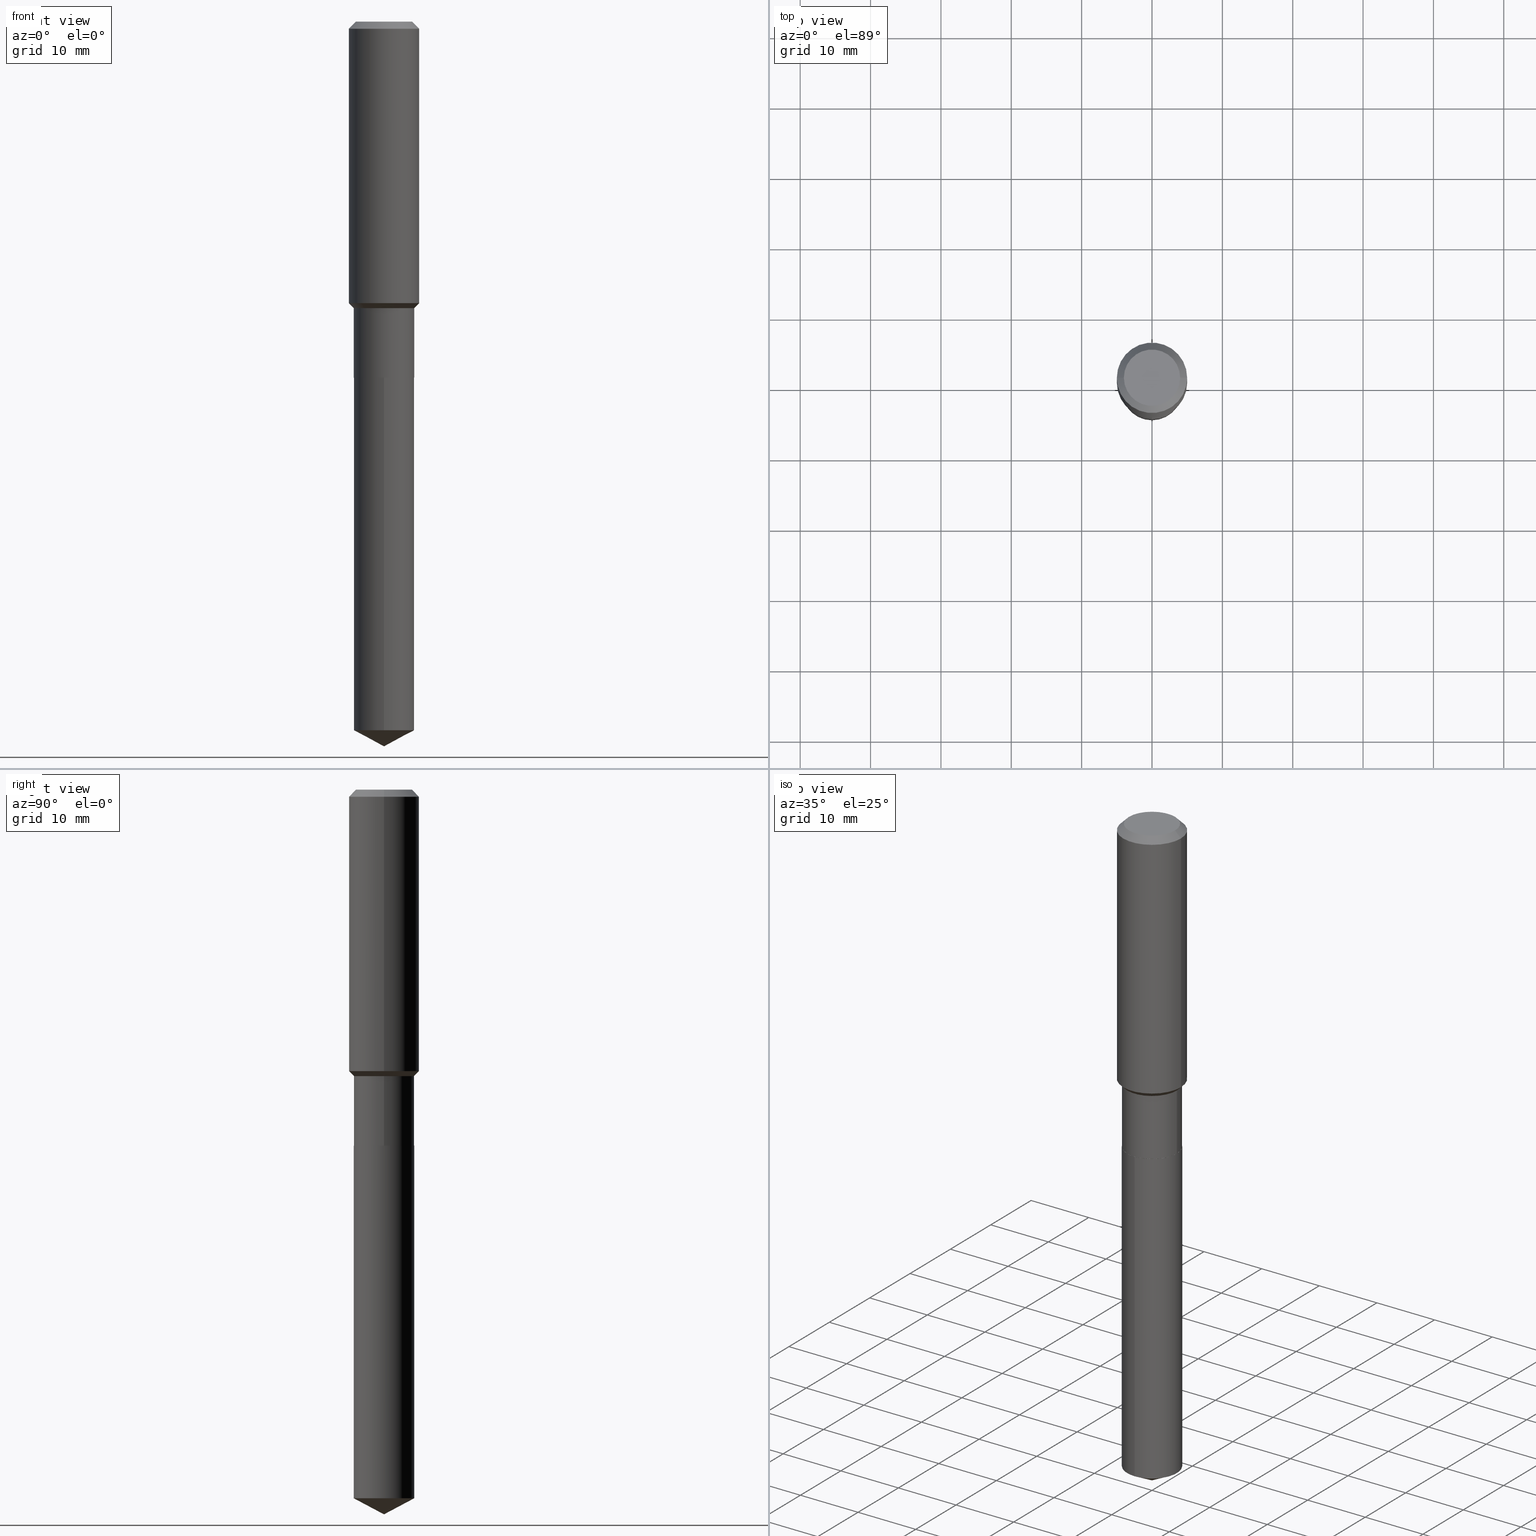
[diagram: canonical four-view strip — front | top / right | iso, engineering-drawing reading convention]
A machine part, canonical four-view strip (front | top / right | iso — engineering-drawing reading convention). The complete STEP part file that produces these views, byte-faithful:
ISO-10303-21;
HEADER;
FILE_DESCRIPTION (( 'STEP AP203' ),
    '1' );
FILE_NAME ('65216.STEP',
    '2024-04-24T21:30:14',
    ( '' ),
    ( '' ),
    'SwSTEP 2.0',
    'SolidWorks 2023',
    '' );
FILE_SCHEMA (( 'CONFIG_CONTROL_DESIGN' ));
ENDSEC;

DATA;
#1 = ADVANCED_FACE ( 'NONE', ( #369 ), #483, .T. ) ;
#2 = FACE_OUTER_BOUND ( 'NONE', #67, .T. ) ;
#3 = DIRECTION ( 'NONE',  ( -2.445468806185136597E-29, 3.491481338843145583E-15, 1.000000000000000000 ) ) ;
#4 = AXIS2_PLACEMENT_3D ( 'NONE', #79, #231, #416 ) ;
#5 = APPROVAL ( #29, 'UNSPECIFIED' ) ;
#6 = AXIS2_PLACEMENT_3D ( 'NONE', #457, #85, #381 ) ;
#7 = DIRECTION ( 'NONE',  ( -2.445468806185136597E-29, 3.491481338843145583E-15, 1.000000000000000000 ) ) ;
#8 = CARTESIAN_POINT ( 'NONE',  ( 4.871618408801410518E-29, -6.955379975109430620E-15, -1.992099999999999982 ) ) ;
#9 = DIRECTION ( 'NONE',  ( -6.982962677686265922E-15, -1.000000000000000000, 3.227227399485248397E-15 ) ) ;
#10 = DIRECTION ( 'NONE',  ( 0.000000000000000000, 0.000000000000000000, 1.000000000000000000 ) ) ;
#11 = LINE ( 'NONE', #204, #190 ) ;
#12 = EDGE_LOOP ( 'NONE', ( #427, #86, #331, #165 ) ) ;
#13 = EDGE_CURVE ( 'NONE', #17, #63, #273, .T. ) ;
#14 = LINE ( 'NONE', #422, #159 ) ;
#15 = ORIENTED_EDGE ( 'NONE', *, *, #440, .F. ) ;
#16 = CALENDAR_DATE ( 2024, 24, 4 ) ;
#17 = VERTEX_POINT ( 'NONE', #373 ) ;
#18 = DIRECTION ( 'NONE',  ( -1.000000000000000000, 6.982962677686265922E-15, -4.876176775795935793E-29 ) ) ;
#19 = PERSON_AND_ORGANIZATION_ROLE ( 'creator' ) ;
#20 = EDGE_CURVE ( 'NONE', #311, #213, #65, .T. ) ;
#21 = EDGE_LOOP ( 'NONE', ( #398, #323, #388, #406 ) ) ;
#22 = AXIS2_PLACEMENT_3D ( 'NONE', #400, #137, #109 ) ;
#23 = COORDINATED_UNIVERSAL_TIME_OFFSET ( 5, 0, .BEHIND. ) ;
#24 = LOCAL_TIME ( 17, 30, 14.00000000000000000, #146 ) ;
#25 = ORIENTED_EDGE ( 'NONE', *, *, #248, .T. ) ;
#26 = PERSON_AND_ORGANIZATION ( #245, #34 ) ;
#27 = CARTESIAN_POINT ( 'NONE',  ( -0.1968500000000001082, 1.398703375343757985E-15, -9.682923725166787881E-30 ) ) ;
#28 = ORIENTED_EDGE ( 'NONE', *, *, #485, .T. ) ;
#29 = APPROVAL_STATUS ( 'not_yet_approved' ) ;
#30 = EDGE_CURVE ( 'NONE', #113, #392, #375, .T. ) ;
#31 = DIRECTION ( 'NONE',  ( -2.445468806185136877E-29, 3.491481338843145188E-15, 1.000000000000000000 ) ) ;
#32 = ORIENTED_EDGE ( 'NONE', *, *, #345, .T. ) ;
#33 = VECTOR ( 'NONE', #299, 39.37007874015748143 ) ;
#34 = ORGANIZATION ( 'UNSPECIFIED', 'UNSPECIFIED', '' ) ;
#35 = DIRECTION ( 'NONE',  ( 1.000000000000000000, -6.982962677686265922E-15, 0.000000000000000000 ) ) ;
#36 = EDGE_CURVE ( 'NONE', #321, #170, #258, .T. ) ;
#37 = CARTESIAN_POINT ( 'NONE',  ( -0.1692999999999999783, -4.392848290122059552E-15, -1.602700000000000014 ) ) ;
#38 = PRODUCT_DEFINITION_FORMATION_WITH_SPECIFIED_SOURCE ( 'ANY', '', #286, .NOT_KNOWN. ) ;
#39 = FACE_OUTER_BOUND ( 'NONE', #466, .T. ) ;
#40 = CARTESIAN_POINT ( 'NONE',  ( 9.916727560451904091E-29, -1.415815404955481658E-14, -4.055100000000000371 ) ) ;
#41 = DESIGN_CONTEXT ( 'detailed design', #259, 'design' ) ;
#42 = CARTESIAN_POINT ( 'NONE',  ( 3.919352855672918562E-29, -5.595797141763909209E-15, -1.602700000000000014 ) ) ;
#43 = AXIS2_PLACEMENT_3D ( 'NONE', #252, #295, #218 ) ;
#44 = CIRCLE ( 'NONE', #393, 0.1968500000000002192 ) ;
#45 = PLANE ( 'NONE',  #223 ) ;
#46 = CARTESIAN_POINT ( 'NONE',  ( -8.636265493660212245E-28, 1.233001915131451199E-13, 35.31497874015747840 ) ) ;
#47 = EDGE_LOOP ( 'NONE', ( #360, #320, #462, #472 ) ) ;
#48 =( NAMED_UNIT ( * ) PLANE_ANGLE_UNIT ( ) SI_UNIT ( $, .RADIAN. ) );
#49 = DIRECTION ( 'NONE',  ( 1.000000000000000000, -6.982962677686265922E-15, 4.876176775795935232E-29 ) ) ;
#50 = ADVANCED_FACE ( 'NONE', ( #338 ), #148, .T. ) ;
#51 = ORIENTED_EDGE ( 'NONE', *, *, #336, .F. ) ;
#52 = DIRECTION ( 'NONE',  ( -2.445468806185136597E-29, 3.491481338843145583E-15, 1.000000000000000000 ) ) ;
#53 = AXIS2_PLACEMENT_3D ( 'NONE', #250, #353, #315 ) ;
#54 = LINE ( 'NONE', #322, #175 ) ;
#55 = APPROVAL_PERSON_ORGANIZATION ( #335, #185, #399 ) ;
#56 = ORIENTED_EDGE ( 'NONE', *, *, #177, .F. ) ;
#57 = SHAPE_DEFINITION_REPRESENTATION ( #72, #193 ) ;
#58 = ORIENTED_EDGE ( 'NONE', *, *, #152, .F. ) ;
#59 = DATE_AND_TIME ( #474, #307 ) ;
#60 = PRODUCT_RELATED_PRODUCT_CATEGORY ( 'detail', '', ( #286 ) ) ;
#61 = DIRECTION ( 'NONE',  ( -2.438088387897960049E-29, 3.491481338843145188E-15, 1.000000000000000000 ) ) ;
#62 =( LENGTH_UNIT ( ) NAMED_UNIT ( * ) SI_UNIT ( $, .METRE. ) );
#63 = VERTEX_POINT ( 'NONE', #268 ) ;
#64 = CARTESIAN_POINT ( 'NONE',  ( 4.870395674398318837E-29, -6.953634234440009116E-15, -1.991600000000000037 ) ) ;
#65 = CIRCLE ( 'NONE', #355, 0.1693000000000000338 ) ;
#66 = CIRCLE ( 'NONE', #300, 0.1692999999999999783 ) ;
#67 = EDGE_LOOP ( 'NONE', ( #107, #25, #140, #441 ) ) ;
#68 = CARTESIAN_POINT ( 'NONE',  ( 0.1688000000000000334, -8.134104075102871639E-15, -1.992099999999999982 ) ) ;
#69 = ORIENTED_EDGE ( 'NONE', *, *, #248, .F. ) ;
#70 = FACE_OUTER_BOUND ( 'NONE', #21, .T. ) ;
#71 = PERSON_AND_ORGANIZATION ( #245, #34 ) ;
#72 = PRODUCT_DEFINITION_SHAPE ( 'NONE', 'NONE',  #419 ) ;
#73 = ADVANCED_FACE ( 'NONE', ( #2 ), #265, .T. ) ;
#74 = ORIENTED_EDGE ( 'NONE', *, *, #345, .F. ) ;
#75 = CARTESIAN_POINT ( 'NONE',  ( -0.1968500000000000250, 1.237136582792286225E-15, -0.03937000000000029365 ) ) ;
#76 = CC_DESIGN_APPROVAL ( #185, ( #419 ) ) ;
#77 = CARTESIAN_POINT ( 'NONE',  ( -9.427742298522567634E-47, 1.346031739168368355E-32, 3.855188123715870730E-18 ) ) ;
#78 = EDGE_CURVE ( 'NONE', #63, #100, #305, .T. ) ;
#79 = CARTESIAN_POINT ( 'NONE',  ( 3.919352855672918562E-29, -5.595797141763909209E-15, -1.602700000000000014 ) ) ;
#80 = CARTESIAN_POINT ( 'NONE',  ( -0.1688000000000000334, -5.753334609972270660E-15, -1.992099999999999982 ) ) ;
#81 = AXIS2_PLACEMENT_3D ( 'NONE', #93, #396, #241 ) ;
#82 = DIRECTION ( 'NONE',  ( -6.982962677686265922E-15, -1.000000000000000000, 3.541896320645556530E-15 ) ) ;
#83 = CC_DESIGN_DATE_AND_TIME_ASSIGNMENT ( #372, #358, ( #244 ) ) ;
#84 = APPLICATION_CONTEXT ( 'configuration controlled 3d designs of mechanical parts and assemblies' ) ;
#85 = DIRECTION ( 'NONE',  ( -2.445468806185136597E-29, 3.491481338843145583E-15, 1.000000000000000000 ) ) ;
#86 = ORIENTED_EDGE ( 'NONE', *, *, #220, .T. ) ;
#87 = AXIS2_PLACEMENT_3D ( 'NONE', #168, #319, #271 ) ;
#88 = DIRECTION ( 'NONE',  ( -6.982962677686265922E-15, -1.000000000000000000, 3.227227399485248397E-15 ) ) ;
#89 = ADVANCED_FACE ( 'NONE', ( #188 ), #174, .T. ) ;
#90 = CARTESIAN_POINT ( 'NONE',  ( 0.000000000000000000, 0.000000000000000000, 0.000000000000000000 ) ) ;
#91 = ORIENTED_EDGE ( 'NONE', *, *, #440, .T. ) ;
#92 = DIRECTION ( 'NONE',  ( -2.445468806185136597E-29, 3.491481338843145583E-15, 1.000000000000000000 ) ) ;
#93 = CARTESIAN_POINT ( 'NONE',  ( 9.627810689950954155E-31, -1.374596203102556547E-16, -0.03937000000000029365 ) ) ;
#94 = EDGE_LOOP ( 'NONE', ( #317, #219, #15, #482 ) ) ;
#95 = DIRECTION ( 'NONE',  ( -6.982962677686265922E-15, -1.000000000000000000, 3.227227399485248397E-15 ) ) ;
#96 = AXIS2_PLACEMENT_3D ( 'NONE', #308, #156, #344 ) ;
#97 = CARTESIAN_POINT ( 'NONE',  ( 3.851980190062517980E-29, -5.499606830878780813E-15, -1.575150000000000050 ) ) ;
#98 = LOCAL_TIME ( 17, 30, 14.00000000000000000, #23 ) ;
#99 = APPROVAL ( #257, 'UNSPECIFIED' ) ;
#100 = VERTEX_POINT ( 'NONE', #153 ) ;
#101 = PERSON_AND_ORGANIZATION_ROLE ( 'design_owner' ) ;
#102 = ORIENTED_EDGE ( 'NONE', *, *, #352, .F. ) ;
#103 = ORIENTED_EDGE ( 'NONE', *, *, #220, .F. ) ;
#104 = FACE_OUTER_BOUND ( 'NONE', #249, .T. ) ;
#105 = EDGE_LOOP ( 'NONE', ( #205, #356 ) ) ;
#106 = VECTOR ( 'NONE', #282, 39.37007874015748143 ) ;
#107 = ORIENTED_EDGE ( 'NONE', *, *, #78, .F. ) ;
#108 = DATE_TIME_ROLE ( 'creation_date' ) ;
#109 = DIRECTION ( 'NONE',  ( 1.000000000000000000, -6.982962677686265922E-15, 0.000000000000000000 ) ) ;
#110 = ADVANCED_FACE ( 'NONE', ( #417 ), #298, .T. ) ;
#111 = ORIENTED_EDGE ( 'NONE', *, *, #152, .T. ) ;
#112 = CALENDAR_DATE ( 2024, 24, 4 ) ;
#113 = VERTEX_POINT ( 'NONE', #155 ) ;
#114 = EDGE_CURVE ( 'NONE', #279, #63, #380, .T. ) ;
#115 = CIRCLE ( 'NONE', #22, 0.1968500000000000250 ) ;
#116 = DIRECTION ( 'NONE',  ( 2.445468806185136597E-29, -3.491481338843145583E-15, -1.000000000000000000 ) ) ;
#117 = CARTESIAN_POINT ( 'NONE',  ( -8.636265493660212245E-28, 1.233001915131451199E-13, 35.31497874015747840 ) ) ;
#118 = EDGE_CURVE ( 'NONE', #141, #329, #413, .T. ) ;
#119 = DIRECTION ( 'NONE',  ( -2.445468806185136597E-29, 3.491481338843145583E-15, 1.000000000000000000 ) ) ;
#120 = VECTOR ( 'NONE', #201, 39.37007874015748143 ) ;
#121 = CARTESIAN_POINT ( 'NONE',  ( 0.000000000000000000, 0.000000000000000000, 0.000000000000000000 ) ) ;
#122 = CARTESIAN_POINT ( 'NONE',  ( 0.1968500000000000250, -1.512055823412797189E-15, -0.03937000000000029365 ) ) ;
#123 = FACE_OUTER_BOUND ( 'NONE', #94, .T. ) ;
#124 = EDGE_LOOP ( 'NONE', ( #437, #410, #69 ) ) ;
#125 = EDGE_CURVE ( 'NONE', #100, #200, #260, .T. ) ;
#126 = AXIS2_PLACEMENT_3D ( 'NONE', #407, #288, #18 ) ;
#127 = CC_DESIGN_APPROVAL ( #99, ( #38 ) ) ;
#128 = DIRECTION ( 'NONE',  ( -6.982962677686265922E-15, -1.000000000000000000, 3.541896320645556530E-15 ) ) ;
#129 = VERTEX_POINT ( 'NONE', #80 ) ;
#130 = CARTESIAN_POINT ( 'NONE',  ( 4.871618408801410518E-29, -6.955379975109430620E-15, -1.992099999999999982 ) ) ;
#131 = ORIENTED_EDGE ( 'NONE', *, *, #301, .F. ) ;
#132 = DIRECTION ( 'NONE',  ( -2.445494968417310331E-29, 3.491443873037610959E-15, 1.000000000000000000 ) ) ;
#133 = CARTESIAN_POINT ( 'NONE',  ( 0.1688000000000000334, -8.134104075102871639E-15, -1.992099999999999982 ) ) ;
#134 = EDGE_CURVE ( 'NONE', #279, #17, #227, .T. ) ;
#135 = ORIENTED_EDGE ( 'NONE', *, *, #304, .F. ) ;
#136 = APPROVAL_ROLE ( '' ) ;
#137 = DIRECTION ( 'NONE',  ( -2.445468806185136597E-29, 3.491481338843145583E-15, 1.000000000000000000 ) ) ;
#138 = CONICAL_SURFACE ( 'NONE', #154, 74.04434902938362484, 1.082104136236486935 ) ;
#139 = DIRECTION ( 'NONE',  ( 1.000000000000000000, -6.982962677686266711E-15, 4.876176775795935793E-29 ) ) ;
#140 = ORIENTED_EDGE ( 'NONE', *, *, #163, .T. ) ;
#141 = VERTEX_POINT ( 'NONE', #347 ) ;
#142 = ORIENTED_EDGE ( 'NONE', *, *, #177, .T. ) ;
#143 = PLANE ( 'NONE',  #126 ) ;
#144 = CARTESIAN_POINT ( 'NONE',  ( 3.919352855672918562E-29, -5.595797141763909209E-15, -1.602700000000000014 ) ) ;
#145 = ORIENTED_EDGE ( 'NONE', *, *, #404, .T. ) ;
#146 = COORDINATED_UNIVERSAL_TIME_OFFSET ( 5, 0, .BEHIND. ) ;
#147 = ADVANCED_FACE ( 'NONE', ( #39 ), #232, .T. ) ;
#148 = CONICAL_SURFACE ( 'NONE', #228, 0.1688000000000000334, 0.7853981633975507526 ) ;
#149 = DIRECTION ( 'NONE',  ( 1.000000000000000000, -6.982962677686265922E-15, 0.000000000000000000 ) ) ;
#150 = ORIENTED_EDGE ( 'NONE', *, *, #30, .F. ) ;
#151 = CYLINDRICAL_SURFACE ( 'NONE', #312, 0.1968500000000001082 ) ;
#152 = EDGE_CURVE ( 'NONE', #409, #113, #306, .T. ) ;
#153 = CARTESIAN_POINT ( 'NONE',  ( 1.202948851641946885E-15, 0.1692999999999930671, -1.992100000000000648 ) ) ;
#154 = AXIS2_PLACEMENT_3D ( 'NONE', #46, #351, #128 ) ;
#155 = CARTESIAN_POINT ( 'NONE',  ( -0.1574800000000000089, 1.168406772637159618E-15, 3.855188123707939751E-18 ) ) ;
#156 = DIRECTION ( 'NONE',  ( -2.445468806185136597E-29, 3.491481338843145583E-15, 1.000000000000000000 ) ) ;
#157 = CC_DESIGN_DATE_AND_TIME_ASSIGNMENT ( #59, #108, ( #419 ) ) ;
#158 = DIRECTION ( 'NONE',  ( -2.445494968417310331E-29, 3.491443873037610959E-15, 1.000000000000000000 ) ) ;
#159 = VECTOR ( 'NONE', #239, 39.37007874015748143 ) ;
#160 = CC_DESIGN_SECURITY_CLASSIFICATION ( #244, ( #38 ) ) ;
#161 = CARTESIAN_POINT ( 'NONE',  ( -1.182215581332236300E-15, -0.1693000000000070004, -1.992099999999999538 ) ) ;
#162 = DIRECTION ( 'NONE',  ( 1.000000000000000000, -6.982962677686266711E-15, 0.000000000000000000 ) ) ;
#163 = EDGE_CURVE ( 'NONE', #17, #200, #421, .T. ) ;
#164 = DIRECTION ( 'NONE',  ( 0.7071067811865450192, -7.319954787623246579E-15, -0.7071067811865500152 ) ) ;
#165 = ORIENTED_EDGE ( 'NONE', *, *, #36, .F. ) ;
#166 = DIRECTION ( 'NONE',  ( 1.000000000000000000, 0.000000000000000000, 0.000000000000000000 ) ) ;
#167 = CLOSED_SHELL ( 'NONE', ( #340, #233, #467, #1, #147, #226, #89, #460, #210, #447, #423, #50 ) ) ;
#168 = CARTESIAN_POINT ( 'NONE',  ( 9.627810689950954155E-31, -1.374596203102556547E-16, -0.03937000000000029365 ) ) ;
#169 = LINE ( 'NONE', #365, #106 ) ;
#170 = VERTEX_POINT ( 'NONE', #122 ) ;
#171 = CC_DESIGN_PERSON_AND_ORGANIZATION_ASSIGNMENT ( #206, #363, ( #244 ) ) ;
#172 = ORIENTED_EDGE ( 'NONE', *, *, #476, .F. ) ;
#173 = APPROVAL_DATE_TIME ( #408, #185 ) ;
#174 = CONICAL_SURFACE ( 'NONE', #96, 0.1692999999999999783, 0.7853981633974508325 ) ;
#175 = VECTOR ( 'NONE', #31, 39.37007874015748143 ) ;
#176 = ORIENTED_EDGE ( 'NONE', *, *, #118, .T. ) ;
#177 = EDGE_CURVE ( 'NONE', #141, #479, #415, .T. ) ;
#178 = ORIENTED_EDGE ( 'NONE', *, *, #313, .T. ) ;
#179 = CALENDAR_DATE ( 2024, 24, 4 ) ;
#180 = DIRECTION ( 'NONE',  ( 1.000000000000000000, -6.982962677686266711E-15, 0.000000000000000000 ) ) ;
#181 = ORIENTED_EDGE ( 'NONE', *, *, #197, .T. ) ;
#182 = APPROVAL_DATE_TIME ( #402, #5 ) ;
#183 = AXIS2_PLACEMENT_3D ( 'NONE', #191, #263, #379 ) ;
#184 = VECTOR ( 'NONE', #387, 39.37007874015748143 ) ;
#185 = APPROVAL ( #443, 'UNSPECIFIED' ) ;
#186 = DIRECTION ( 'NONE',  ( -2.445468806185136877E-29, 3.491481338843145188E-15, 1.000000000000000000 ) ) ;
#187 = CARTESIAN_POINT ( 'NONE',  ( 9.916622410863608965E-29, -1.415830332081722906E-14, -4.055100000000000371 ) ) ;
#188 = FACE_OUTER_BOUND ( 'NONE', #246, .T. ) ;
#189 = CLOSED_SHELL ( 'NONE', ( #454, #385, #110, #73, #359 ) ) ;
#190 = VECTOR ( 'NONE', #164, 39.37007874015748143 ) ;
#191 = CARTESIAN_POINT ( 'NONE',  ( 4.871618408801410518E-29, -6.955379975109430620E-15, -1.992099999999999982 ) ) ;
#192 = EDGE_CURVE ( 'NONE', #113, #409, #456, .T. ) ;
#193 = ADVANCED_BREP_SHAPE_REPRESENTATION ( '65216', ( #397, #230, #458 ), #395 ) ;
#194 = DIRECTION ( 'NONE',  ( 1.000000000000000000, -6.982962677686265922E-15, 4.876223630392693006E-29 ) ) ;
#195 = DIRECTION ( 'NONE',  ( 6.273719981627766865E-15, 0.8829475928589298750, 0.4694715627858853657 ) ) ;
#196 = AXIS2_PLACEMENT_3D ( 'NONE', #424, #199, #88 ) ;
#197 = EDGE_CURVE ( 'NONE', #329, #141, #66, .T. ) ;
#198 =( NAMED_UNIT ( * ) SI_UNIT ( $, .STERADIAN. ) SOLID_ANGLE_UNIT ( ) );
#199 = DIRECTION ( 'NONE',  ( -2.445494968417310331E-29, 3.491443873037610959E-15, 1.000000000000000000 ) ) ;
#200 = VERTEX_POINT ( 'NONE', #161 ) ;
#201 = DIRECTION ( 'NONE',  ( 0.7071067811866199593, -2.468850131083015945E-15, 0.7071067811864750752 ) ) ;
#202 = AXIS2_PLACEMENT_3D ( 'NONE', #215, #274, #9 ) ;
#203 = APPROVAL_PERSON_ORGANIZATION ( #289, #5, #136 ) ;
#204 = CARTESIAN_POINT ( 'NONE',  ( 0.1968500000000000250, -1.487948651171581601E-15, -0.03937000000000029365 ) ) ;
#205 = ORIENTED_EDGE ( 'NONE', *, *, #370, .T. ) ;
#206 = PERSON_AND_ORGANIZATION ( #245, #34 ) ;
#207 = EDGE_LOOP ( 'NONE', ( #216, #275, #287 ) ) ;
#208 = APPROVAL_DATE_TIME ( #332, #99 ) ;
#209 = VECTOR ( 'NONE', #376, 39.37007874015748143 ) ;
#210 = ADVANCED_FACE ( 'NONE', ( #341 ), #337, .T. ) ;
#211 = CIRCLE ( 'NONE', #202, 0.1693000000000000338 ) ;
#212 = DIMENSIONAL_EXPONENTS ( 1.000000000000000000, 0.000000000000000000, 0.000000000000000000, 0.000000000000000000, 0.000000000000000000, 0.000000000000000000, 0.000000000000000000 ) ;
#213 = VERTEX_POINT ( 'NONE', #343 ) ;
#214 = PERSON_AND_ORGANIZATION ( #245, #34 ) ;
#215 = CARTESIAN_POINT ( 'NONE',  ( 9.696534967800186520E-29, -1.384393447037237794E-14, -3.965081593219712097 ) ) ;
#216 = ORIENTED_EDGE ( 'NONE', *, *, #134, .F. ) ;
#217 = PERSON_AND_ORGANIZATION_ROLE ( 'design_supplier' ) ;
#218 = DIRECTION ( 'NONE',  ( -6.982962677686265922E-15, -1.000000000000000000, 3.227227399485248397E-15 ) ) ;
#219 = ORIENTED_EDGE ( 'NONE', *, *, #304, .T. ) ;
#220 = EDGE_CURVE ( 'NONE', #479, #392, #453, .T. ) ;
#221 = PLANE ( 'NONE',  #488 ) ;
#222 = CARTESIAN_POINT ( 'NONE',  ( 0.1968500000000001082, -1.374596203102542397E-15, 9.598753983154305062E-30 ) ) ;
#223 = AXIS2_PLACEMENT_3D ( 'NONE', #8, #461, #272 ) ;
#224 = CARTESIAN_POINT ( 'NONE',  ( 1.202948851641898370E-15, 0.1692999999999930671, -1.992100000000000648 ) ) ;
#225 = DIRECTION ( 'NONE',  ( -2.445468806185136597E-29, 3.491481338843145583E-15, 1.000000000000000000 ) ) ;
#226 = ADVANCED_FACE ( 'NONE', ( #368 ), #389, .T. ) ;
#227 = LINE ( 'NONE', #187, #450 ) ;
#228 = AXIS2_PLACEMENT_3D ( 'NONE', #302, #3, #486 ) ;
#229 = AXIS2_PLACEMENT_3D ( 'NONE', #481, #92, #162 ) ;
#230 = MANIFOLD_SOLID_BREP ( 'Body-Move/Copy2[2]', #167 ) ;
#231 = DIRECTION ( 'NONE',  ( -2.445468806185136597E-29, 3.491481338843145583E-15, 1.000000000000000000 ) ) ;
#232 = CYLINDRICAL_SURFACE ( 'NONE', #384, 0.1693000000000000338 ) ;
#233 = ADVANCED_FACE ( 'NONE', ( #350 ), #342, .T. ) ;
#234 = CARTESIAN_POINT ( 'NONE',  ( 4.871618408801410518E-29, -6.955379975109430620E-15, -1.992099999999999982 ) ) ;
#235 = VECTOR ( 'NONE', #186, 39.37007874015748143 ) ;
#236 = LINE ( 'NONE', #68, #120 ) ;
#237 = LINE ( 'NONE', #357, #184 ) ;
#238 = EDGE_LOOP ( 'NONE', ( #181, #142, #296, #74 ) ) ;
#239 = DIRECTION ( 'NONE',  ( 0.7071067811865493491, -2.468850131082275993E-15, 0.7071067811865457964 ) ) ;
#240 = CC_DESIGN_PERSON_AND_ORGANIZATION_ASSIGNMENT ( #26, #284, ( #419 ) ) ;
#241 = DIRECTION ( 'NONE',  ( 1.000000000000000000, -6.982962677686265922E-15, 0.000000000000000000 ) ) ;
#242 = EDGE_LOOP ( 'NONE', ( #362, #111 ) ) ;
#243 = CIRCLE ( 'NONE', #53, 0.1968500000000002192 ) ;
#244 = SECURITY_CLASSIFICATION ( '', '', #480 ) ;
#245 = PERSON ( 'UNSPECIFIED', 'UNSPECIFIED', 'UNSPECIFIED', ('UNSPECIFIED'), ('UNSPECIFIED'), ('UNSPECIFIED') ) ;
#246 = EDGE_LOOP ( 'NONE', ( #56, #176, #32, #51 ) ) ;
#247 = APPLICATION_PROTOCOL_DEFINITION ( 'international standard', 'config_control_design', 1994, #259 ) ;
#248 = EDGE_CURVE ( 'NONE', #63, #17, #211, .T. ) ;
#249 = EDGE_LOOP ( 'NONE', ( #102, #435 ) ) ;
#250 = CARTESIAN_POINT ( 'NONE',  ( 3.851980190062517980E-29, -5.499606830878780813E-15, -1.575150000000000050 ) ) ;
#251 = AXIS2_PLACEMENT_3D ( 'NONE', #234, #309, #383 ) ;
#252 = CARTESIAN_POINT ( 'NONE',  ( 9.696534967800186520E-29, -1.384393447037237794E-14, -3.965081593219712097 ) ) ;
#253 = VERTEX_POINT ( 'NONE', #133 ) ;
#254 = PERSON_AND_ORGANIZATION ( #245, #34 ) ;
#255 = CC_DESIGN_PERSON_AND_ORGANIZATION_ASSIGNMENT ( #71, #217, ( #38 ) ) ;
#256 = ORIENTED_EDGE ( 'NONE', *, *, #192, .F. ) ;
#257 = APPROVAL_STATUS ( 'not_yet_approved' ) ;
#258 = LINE ( 'NONE', #222, #235 ) ;
#259 = APPLICATION_CONTEXT ( 'configuration controlled 3d designs of mechanical parts and assemblies' ) ;
#260 = CIRCLE ( 'NONE', #324, 0.1693000000000000338 ) ;
#261 = APPROVAL_PERSON_ORGANIZATION ( #293, #99, #367 ) ;
#262 = DIRECTION ( 'NONE',  ( 1.000000000000000000, -6.982962677686266711E-15, 4.876176775795935793E-29 ) ) ;
#263 = DIRECTION ( 'NONE',  ( -2.445494968417310331E-29, 3.491443873037610959E-15, 1.000000000000000000 ) ) ;
#264 = EDGE_CURVE ( 'NONE', #321, #479, #243, .T. ) ;
#265 = CYLINDRICAL_SURFACE ( 'NONE', #183, 0.1693000000000000338 ) ;
#266 = CARTESIAN_POINT ( 'NONE',  ( -1.182215581332236300E-15, -0.1693000000000070004, -1.992099999999999538 ) ) ;
#267 = LOCAL_TIME ( 17, 30, 14.00000000000000000, #280 ) ;
#268 = CARTESIAN_POINT ( 'NONE',  ( 1.202948851641947082E-15, 0.1692999999999862670, -3.965081593219712985 ) ) ;
#269 = CC_DESIGN_PERSON_AND_ORGANIZATION_ASSIGNMENT ( #214, #101, ( #286 ) ) ;
#270 = MECHANICAL_CONTEXT ( 'NONE', #84, 'mechanical' ) ;
#271 = DIRECTION ( 'NONE',  ( -1.000000000000000000, 6.982962677686265922E-15, 0.000000000000000000 ) ) ;
#272 = DIRECTION ( 'NONE',  ( 6.982962677686265922E-15, 1.000000000000000000, -3.491443873037610959E-15 ) ) ;
#273 = CIRCLE ( 'NONE', #43, 0.1693000000000000338 ) ;
#274 = DIRECTION ( 'NONE',  ( -2.445494968417310331E-29, 3.491443873037610959E-15, 1.000000000000000000 ) ) ;
#275 = ORIENTED_EDGE ( 'NONE', *, *, #114, .T. ) ;
#276 = EDGE_CURVE ( 'NONE', #253, #213, #236, .T. ) ;
#277 = DIRECTION ( 'NONE',  ( -2.445468806185136597E-29, 3.491481338843145583E-15, 1.000000000000000000 ) ) ;
#278 = CARTESIAN_POINT ( 'NONE',  ( -0.1693000000000000338, -5.071766836460109505E-15, -1.991600000000000037 ) ) ;
#279 = VERTEX_POINT ( 'NONE', #426 ) ;
#280 = COORDINATED_UNIVERSAL_TIME_OFFSET ( 5, 0, .BEHIND. ) ;
#281 = CIRCLE ( 'NONE', #196, 0.1693000000000000338 ) ;
#282 = DIRECTION ( 'NONE',  ( -2.445468806185136877E-29, 3.491481338843145188E-15, 1.000000000000000000 ) ) ;
#283 = ORIENTED_EDGE ( 'NONE', *, *, #30, .T. ) ;
#284 = PERSON_AND_ORGANIZATION_ROLE ( 'creator' ) ;
#285 =( CONVERSION_BASED_UNIT ( 'INCH', #361 ) LENGTH_UNIT ( ) NAMED_UNIT ( #212 ) );
#286 = PRODUCT ( '65216', '65216', '', ( #270 ) ) ;
#287 = ORIENTED_EDGE ( 'NONE', *, *, #13, .F. ) ;
#288 = DIRECTION ( 'NONE',  ( 2.438088387897960049E-29, -3.491481338843145188E-15, -1.000000000000000000 ) ) ;
#289 = PERSON_AND_ORGANIZATION ( #245, #34 ) ;
#290 = DIRECTION ( 'NONE',  ( -2.445468806185136597E-29, 3.491481338843145583E-15, 1.000000000000000000 ) ) ;
#291 = ORIENTED_EDGE ( 'NONE', *, *, #485, .F. ) ;
#292 = DIRECTION ( 'NONE',  ( 1.000000000000000000, -6.982962677686263555E-15, 0.000000000000000000 ) ) ;
#293 = PERSON_AND_ORGANIZATION ( #245, #34 ) ;
#294 = CIRCLE ( 'NONE', #81, 0.1968500000000000250 ) ;
#295 = DIRECTION ( 'NONE',  ( -2.445494968417310331E-29, 3.491443873037610959E-15, 1.000000000000000000 ) ) ;
#296 = ORIENTED_EDGE ( 'NONE', *, *, #264, .F. ) ;
#297 = CARTESIAN_POINT ( 'NONE',  ( -0.1968500000000000250, -1.419829850250760015E-15, -0.03937000000000029365 ) ) ;
#298 = CONICAL_SURFACE ( 'NONE', #348, 74.04434902938362484, 1.082104136236486935 ) ;
#299 = DIRECTION ( 'NONE',  ( -2.445494968417310331E-29, 3.491443873037610959E-15, 1.000000000000000000 ) ) ;
#300 = AXIS2_PLACEMENT_3D ( 'NONE', #42, #7, #35 ) ;
#301 = EDGE_CURVE ( 'NONE', #409, #170, #11, .T. ) ;
#302 = CARTESIAN_POINT ( 'NONE',  ( 4.871618408801410518E-29, -6.955379975109430620E-15, -1.992099999999999982 ) ) ;
#303 = DIRECTION ( 'NONE',  ( -6.982962677686265922E-15, -1.000000000000000000, 3.227227399485248397E-15 ) ) ;
#304 = EDGE_CURVE ( 'NONE', #129, #311, #237, .T. ) ;
#305 = LINE ( 'NONE', #224, #33 ) ;
#306 = CIRCLE ( 'NONE', #414, 0.1574800000000000089 ) ;
#307 = LOCAL_TIME ( 17, 30, 14.00000000000000000, #330 ) ;
#308 = CARTESIAN_POINT ( 'NONE',  ( 3.919352855672918562E-29, -5.595797141763909209E-15, -1.602700000000000014 ) ) ;
#309 = DIRECTION ( 'NONE',  ( -2.445468806185136597E-29, 3.491481338843145583E-15, 1.000000000000000000 ) ) ;
#310 = CARTESIAN_POINT ( 'NONE',  ( 0.1968500000000002192, -6.874203033981323210E-15, -1.575150000000000050 ) ) ;
#311 = VERTEX_POINT ( 'NONE', #278 ) ;
#312 = AXIS2_PLACEMENT_3D ( 'NONE', #339, #449, #262 ) ;
#313 = EDGE_CURVE ( 'NONE', #129, #253, #425, .T. ) ;
#314 = LOCAL_TIME ( 17, 30, 14.00000000000000000, #439 ) ;
#315 = DIRECTION ( 'NONE',  ( 1.000000000000000000, -6.982962677686265922E-15, 0.000000000000000000 ) ) ;
#316 = CARTESIAN_POINT ( 'NONE',  ( -0.1968500000000002192, -4.100903455535021447E-15, -1.575150000000000050 ) ) ;
#317 = ORIENTED_EDGE ( 'NONE', *, *, #352, .T. ) ;
#318 = CARTESIAN_POINT ( 'NONE',  ( 4.871618408801410518E-29, -6.955379975109430620E-15, -1.992099999999999982 ) ) ;
#319 = DIRECTION ( 'NONE',  ( 2.445468806185136597E-29, -3.491481338843145583E-15, -1.000000000000000000 ) ) ;
#320 = ORIENTED_EDGE ( 'NONE', *, *, #20, .T. ) ;
#321 = VERTEX_POINT ( 'NONE', #310 ) ;
#322 = CARTESIAN_POINT ( 'NONE',  ( -0.1693000000000000338, 1.202948851641849855E-15, -8.327757107801555711E-30 ) ) ;
#323 = ORIENTED_EDGE ( 'NONE', *, *, #78, .T. ) ;
#324 = AXIS2_PLACEMENT_3D ( 'NONE', #459, #158, #303 ) ;
#325 = AXIS2_PLACEMENT_3D ( 'NONE', #318, #132, #95 ) ;
#326 = DIRECTION ( 'NONE',  ( 1.000000000000000000, -6.982962677686265922E-15, 4.876176775795935793E-29 ) ) ;
#327 = CYLINDRICAL_SURFACE ( 'NONE', #378, 0.1968500000000001082 ) ;
#328 = CARTESIAN_POINT ( 'NONE',  ( 4.870395674398318837E-29, -6.953634234440009116E-15, -1.991600000000000037 ) ) ;
#329 = VERTEX_POINT ( 'NONE', #431 ) ;
#330 = COORDINATED_UNIVERSAL_TIME_OFFSET ( 5, 0, .BEHIND. ) ;
#331 = ORIENTED_EDGE ( 'NONE', *, *, #404, .F. ) ;
#332 = DATE_AND_TIME ( #179, #98 ) ;
#333 = DIRECTION ( 'NONE',  ( 1.000000000000000000, -6.982962677686265922E-15, 0.000000000000000000 ) ) ;
#334 = ORIENTED_EDGE ( 'NONE', *, *, #36, .T. ) ;
#335 = PERSON_AND_ORGANIZATION ( #245, #34 ) ;
#336 = EDGE_CURVE ( 'NONE', #479, #321, #44, .T. ) ;
#337 = CONICAL_SURFACE ( 'NONE', #364, 0.1968500000000000250, 0.7853981633974447263 ) ;
#338 = FACE_OUTER_BOUND ( 'NONE', #432, .T. ) ;
#339 = CARTESIAN_POINT ( 'NONE',  ( 0.000000000000000000, 0.000000000000000000, 0.000000000000000000 ) ) ;
#340 = ADVANCED_FACE ( 'NONE', ( #123 ), #451, .T. ) ;
#341 = FACE_OUTER_BOUND ( 'NONE', #446, .T. ) ;
#342 = CONICAL_SURFACE ( 'NONE', #87, 0.1968500000000000250, 0.7853981633974447263 ) ;
#343 = CARTESIAN_POINT ( 'NONE',  ( 0.1693000000000000338, -8.135849815772293932E-15, -1.991600000000000037 ) ) ;
#344 = DIRECTION ( 'NONE',  ( 1.000000000000000000, -6.982962677686265922E-15, 0.000000000000000000 ) ) ;
#345 = EDGE_CURVE ( 'NONE', #329, #321, #14, .T. ) ;
#346 = DIRECTION ( 'NONE',  ( -6.165590087286836029E-15, -0.8829475928589264333, 0.4694715627858916385 ) ) ;
#347 = CARTESIAN_POINT ( 'NONE',  ( -0.1692999999999999783, -5.071766836460109505E-15, -1.602700000000000014 ) ) ;
#348 = AXIS2_PLACEMENT_3D ( 'NONE', #117, #490, #82 ) ;
#349 = AXIS2_PLACEMENT_3D ( 'NONE', #64, #433, #292 ) ;
#350 = FACE_OUTER_BOUND ( 'NONE', #366, .T. ) ;
#351 = DIRECTION ( 'NONE',  ( -2.445494968417310331E-29, 3.491443873037610959E-15, 1.000000000000000000 ) ) ;
#352 = EDGE_CURVE ( 'NONE', #253, #129, #403, .T. ) ;
#353 = DIRECTION ( 'NONE',  ( -2.445468806185136597E-29, 3.491481338843145583E-15, 1.000000000000000000 ) ) ;
#354 = UNCERTAINTY_MEASURE_WITH_UNIT (LENGTH_MEASURE( 1.000000000000000082E-05 ), #285, 'distance_accuracy_value', 'NONE');
#355 = AXIS2_PLACEMENT_3D ( 'NONE', #328, #445, #405 ) ;
#356 = ORIENTED_EDGE ( 'NONE', *, *, #125, .T. ) ;
#357 = CARTESIAN_POINT ( 'NONE',  ( -0.1688000000000000334, -5.755983837146381072E-15, -1.992099999999999982 ) ) ;
#358 = DATE_TIME_ROLE ( 'classification_date' ) ;
#359 = ADVANCED_FACE ( 'NONE', ( #464 ), #45, .F. ) ;
#360 = ORIENTED_EDGE ( 'NONE', *, *, #391, .F. ) ;
#361 = LENGTH_MEASURE_WITH_UNIT ( LENGTH_MEASURE( 0.02539999999999999897 ), #62 );
#362 = ORIENTED_EDGE ( 'NONE', *, *, #192, .T. ) ;
#363 = PERSON_AND_ORGANIZATION_ROLE ( 'classification_officer' ) ;
#364 = AXIS2_PLACEMENT_3D ( 'NONE', #452, #116, #377 ) ;
#365 = CARTESIAN_POINT ( 'NONE',  ( 0.1693000000000000338, -1.182215581332285012E-15, 8.255367281422519824E-30 ) ) ;
#366 = EDGE_LOOP ( 'NONE', ( #58, #477, #145, #150 ) ) ;
#367 = APPROVAL_ROLE ( '' ) ;
#368 = FACE_OUTER_BOUND ( 'NONE', #47, .T. ) ;
#369 = FACE_OUTER_BOUND ( 'NONE', #238, .T. ) ;
#370 = EDGE_CURVE ( 'NONE', #200, #100, #281, .T. ) ;
#371 = EDGE_LOOP ( 'NONE', ( #103, #442, #334, #291 ) ) ;
#372 = DATE_AND_TIME ( #436, #24 ) ;
#373 = CARTESIAN_POINT ( 'NONE',  ( -1.182215581332188180E-15, -0.1693000000000138838, -3.965081593219711653 ) ) ;
#374 = CC_DESIGN_APPROVAL ( #5, ( #244 ) ) ;
#375 = LINE ( 'NONE', #75, #471 ) ;
#376 = DIRECTION ( 'NONE',  ( -0.7071067811865493491, 7.493145998870360471E-15, 0.7071067811865457964 ) ) ;
#377 = DIRECTION ( 'NONE',  ( -1.000000000000000000, 6.982962677686265922E-15, 0.000000000000000000 ) ) ;
#378 = AXIS2_PLACEMENT_3D ( 'NONE', #470, #475, #139 ) ;
#379 = DIRECTION ( 'NONE',  ( -6.982962677686265922E-15, -1.000000000000000000, 3.227227399485248397E-15 ) ) ;
#380 = LINE ( 'NONE', #40, #463 ) ;
#381 = DIRECTION ( 'NONE',  ( 1.000000000000000000, -6.982962677686265922E-15, 4.876223630392693006E-29 ) ) ;
#382 = CARTESIAN_POINT ( 'NONE',  ( 0.000000000000000000, 0.000000000000000000, 0.000000000000000000 ) ) ;
#383 = DIRECTION ( 'NONE',  ( 1.000000000000000000, -6.982962677686266711E-15, 0.000000000000000000 ) ) ;
#384 = AXIS2_PLACEMENT_3D ( 'NONE', #121, #225, #455 ) ;
#385 = ADVANCED_FACE ( 'NONE', ( #386 ), #138, .T. ) ;
#386 = FACE_OUTER_BOUND ( 'NONE', #207, .T. ) ;
#387 = DIRECTION ( 'NONE',  ( -0.7071067811866199593, 7.493145998870616062E-15, 0.7071067811864750752 ) ) ;
#388 = ORIENTED_EDGE ( 'NONE', *, *, #370, .F. ) ;
#389 = CYLINDRICAL_SURFACE ( 'NONE', #484, 0.1693000000000000338 ) ;
#390 = AXIS2_PLACEMENT_3D ( 'NONE', #144, #290, #149 ) ;
#391 = EDGE_CURVE ( 'NONE', #311, #141, #54, .T. ) ;
#392 = VERTEX_POINT ( 'NONE', #297 ) ;
#393 = AXIS2_PLACEMENT_3D ( 'NONE', #97, #428, #333 ) ;
#394 = APPLICATION_PROTOCOL_DEFINITION ( 'international standard', 'config_control_design', 1994, #84 ) ;
#395 =( GEOMETRIC_REPRESENTATION_CONTEXT ( 3 ) GLOBAL_UNCERTAINTY_ASSIGNED_CONTEXT ( ( #354 ) ) GLOBAL_UNIT_ASSIGNED_CONTEXT ( ( #285, #48, #198 ) ) REPRESENTATION_CONTEXT ( 'NONE', 'WORKASPACE' ) );
#396 = DIRECTION ( 'NONE',  ( -2.445468806185136597E-29, 3.491481338843145583E-15, 1.000000000000000000 ) ) ;
#397 = MANIFOLD_SOLID_BREP ( 'Body-Move/Copy2[1]', #189 ) ;
#398 = ORIENTED_EDGE ( 'NONE', *, *, #13, .T. ) ;
#399 = APPROVAL_ROLE ( '' ) ;
#400 = CARTESIAN_POINT ( 'NONE',  ( 9.627810689950954155E-31, -1.374596203102556547E-16, -0.03937000000000029365 ) ) ;
#401 = ORIENTED_EDGE ( 'NONE', *, *, #197, .F. ) ;
#402 = DATE_AND_TIME ( #16, #267 ) ;
#403 = CIRCLE ( 'NONE', #251, 0.1688000000000000334 ) ;
#404 = EDGE_CURVE ( 'NONE', #170, #392, #115, .T. ) ;
#405 = DIRECTION ( 'NONE',  ( 1.000000000000000000, -6.982962677686263555E-15, 0.000000000000000000 ) ) ;
#406 = ORIENTED_EDGE ( 'NONE', *, *, #163, .F. ) ;
#407 = CARTESIAN_POINT ( 'NONE',  ( -4.713871149261283817E-47, 6.730158695841841775E-33, 1.927594061857935365E-18 ) ) ;
#408 = DATE_AND_TIME ( #112, #314 ) ;
#409 = VERTEX_POINT ( 'NONE', #411 ) ;
#410 = ORIENTED_EDGE ( 'NONE', *, *, #134, .T. ) ;
#411 = CARTESIAN_POINT ( 'NONE',  ( 0.1574800000000000089, -1.284169937930321189E-15, 3.855188123724205385E-18 ) ) ;
#412 = FACE_OUTER_BOUND ( 'NONE', #371, .T. ) ;
#413 = CIRCLE ( 'NONE', #4, 0.1692999999999999783 ) ;
#414 = AXIS2_PLACEMENT_3D ( 'NONE', #77, #119, #194 ) ;
#415 = LINE ( 'NONE', #37, #209 ) ;
#416 = DIRECTION ( 'NONE',  ( 1.000000000000000000, -6.982962677686265922E-15, 0.000000000000000000 ) ) ;
#417 = FACE_OUTER_BOUND ( 'NONE', #124, .T. ) ;
#418 = VECTOR ( 'NONE', #468, 39.37007874015748143 ) ;
#419 = PRODUCT_DEFINITION ( 'UNKNOWN', '', #38, #41 ) ;
#420 = DIRECTION ( 'NONE',  ( -2.445494968417310331E-29, 3.491443873037610959E-15, 1.000000000000000000 ) ) ;
#421 = LINE ( 'NONE', #266, #473 ) ;
#422 = CARTESIAN_POINT ( 'NONE',  ( 0.1692999999999999783, -6.778012723096194024E-15, -1.602700000000000014 ) ) ;
#423 = ADVANCED_FACE ( 'NONE', ( #104 ), #221, .F. ) ;
#424 = CARTESIAN_POINT ( 'NONE',  ( 4.871618408801410518E-29, -6.955379975109430620E-15, -1.992099999999999982 ) ) ;
#425 = CIRCLE ( 'NONE', #489, 0.1688000000000000334 ) ;
#426 = CARTESIAN_POINT ( 'NONE',  ( 9.916726646429035414E-29, -1.415815404955481658E-14, -4.055100000000000371 ) ) ;
#427 = ORIENTED_EDGE ( 'NONE', *, *, #264, .T. ) ;
#428 = DIRECTION ( 'NONE',  ( -2.445468806185136597E-29, 3.491481338843145583E-15, 1.000000000000000000 ) ) ;
#429 = CC_DESIGN_PERSON_AND_ORGANIZATION_ASSIGNMENT ( #254, #19, ( #38 ) ) ;
#430 = ORIENTED_EDGE ( 'NONE', *, *, #391, .T. ) ;
#431 = CARTESIAN_POINT ( 'NONE',  ( 0.1692999999999999783, -6.778012723096194024E-15, -1.602700000000000014 ) ) ;
#432 = EDGE_LOOP ( 'NONE', ( #135, #178, #465, #469 ) ) ;
#433 = DIRECTION ( 'NONE',  ( -2.445468806185136597E-29, 3.491481338843145583E-15, 1.000000000000000000 ) ) ;
#434 = CARTESIAN_POINT ( 'NONE',  ( 4.871618408801410518E-29, -6.955379975109430620E-15, -1.992099999999999982 ) ) ;
#435 = ORIENTED_EDGE ( 'NONE', *, *, #313, .F. ) ;
#436 = CALENDAR_DATE ( 2024, 24, 4 ) ;
#437 = ORIENTED_EDGE ( 'NONE', *, *, #114, .F. ) ;
#438 = CYLINDRICAL_SURFACE ( 'NONE', #325, 0.1693000000000000338 ) ;
#439 = COORDINATED_UNIVERSAL_TIME_OFFSET ( 5, 0, .BEHIND. ) ;
#440 = EDGE_CURVE ( 'NONE', #213, #311, #444, .T. ) ;
#441 = ORIENTED_EDGE ( 'NONE', *, *, #125, .F. ) ;
#442 = ORIENTED_EDGE ( 'NONE', *, *, #336, .T. ) ;
#443 = APPROVAL_STATUS ( 'not_yet_approved' ) ;
#444 = CIRCLE ( 'NONE', #349, 0.1693000000000000338 ) ;
#445 = DIRECTION ( 'NONE',  ( -2.445468806185136597E-29, 3.491481338843145583E-15, 1.000000000000000000 ) ) ;
#446 = EDGE_LOOP ( 'NONE', ( #131, #256, #283, #28 ) ) ;
#447 = ADVANCED_FACE ( 'NONE', ( #478 ), #143, .F. ) ;
#448 = DIRECTION ( 'NONE',  ( -0.7071067811865450192, 2.468850131082230634E-15, -0.7071067811865500152 ) ) ;
#449 = DIRECTION ( 'NONE',  ( -2.445468806185136597E-29, 3.491481338843145583E-15, 1.000000000000000000 ) ) ;
#450 = VECTOR ( 'NONE', #346, 39.37007874015748143 ) ;
#451 = CONICAL_SURFACE ( 'NONE', #229, 0.1688000000000000334, 0.7853981633975507526 ) ;
#452 = CARTESIAN_POINT ( 'NONE',  ( 9.627810689950954155E-31, -1.374596203102556547E-16, -0.03937000000000029365 ) ) ;
#453 = LINE ( 'NONE', #27, #418 ) ;
#454 = ADVANCED_FACE ( 'NONE', ( #70 ), #438, .T. ) ;
#455 = DIRECTION ( 'NONE',  ( 1.000000000000000000, -6.982962677686265922E-15, 4.876176775795935232E-29 ) ) ;
#456 = CIRCLE ( 'NONE', #6, 0.1574800000000000089 ) ;
#457 = CARTESIAN_POINT ( 'NONE',  ( -9.427742298522567634E-47, 1.346031739168368355E-32, 3.855188123715870730E-18 ) ) ;
#458 = AXIS2_PLACEMENT_3D ( 'NONE', #382, #10, #166 ) ;
#459 = CARTESIAN_POINT ( 'NONE',  ( 4.871618408801410518E-29, -6.955379975109430620E-15, -1.992099999999999982 ) ) ;
#460 = ADVANCED_FACE ( 'NONE', ( #412 ), #151, .T. ) ;
#461 = DIRECTION ( 'NONE',  ( 2.445494968417310051E-29, -3.491443873037610959E-15, -1.000000000000000000 ) ) ;
#462 = ORIENTED_EDGE ( 'NONE', *, *, #476, .T. ) ;
#463 = VECTOR ( 'NONE', #195, 39.37007874015748143 ) ;
#464 = FACE_OUTER_BOUND ( 'NONE', #105, .T. ) ;
#465 = ORIENTED_EDGE ( 'NONE', *, *, #276, .T. ) ;
#466 = EDGE_LOOP ( 'NONE', ( #91, #430, #401, #172 ) ) ;
#467 = ADVANCED_FACE ( 'NONE', ( #487 ), #327, .T. ) ;
#468 = DIRECTION ( 'NONE',  ( -2.445468806185136877E-29, 3.491481338843145188E-15, 1.000000000000000000 ) ) ;
#469 = ORIENTED_EDGE ( 'NONE', *, *, #20, .F. ) ;
#470 = CARTESIAN_POINT ( 'NONE',  ( 0.000000000000000000, 0.000000000000000000, 0.000000000000000000 ) ) ;
#471 = VECTOR ( 'NONE', #448, 39.37007874015748143 ) ;
#472 = ORIENTED_EDGE ( 'NONE', *, *, #118, .F. ) ;
#473 = VECTOR ( 'NONE', #420, 39.37007874015748143 ) ;
#474 = CALENDAR_DATE ( 2024, 24, 4 ) ;
#475 = DIRECTION ( 'NONE',  ( -2.445468806185136597E-29, 3.491481338843145583E-15, 1.000000000000000000 ) ) ;
#476 = EDGE_CURVE ( 'NONE', #213, #329, #169, .T. ) ;
#477 = ORIENTED_EDGE ( 'NONE', *, *, #301, .T. ) ;
#478 = FACE_OUTER_BOUND ( 'NONE', #242, .T. ) ;
#479 = VERTEX_POINT ( 'NONE', #316 ) ;
#480 = SECURITY_CLASSIFICATION_LEVEL ( 'unclassified' ) ;
#481 = CARTESIAN_POINT ( 'NONE',  ( 4.871618408801410518E-29, -6.955379975109430620E-15, -1.992099999999999982 ) ) ;
#482 = ORIENTED_EDGE ( 'NONE', *, *, #276, .F. ) ;
#483 = CONICAL_SURFACE ( 'NONE', #390, 0.1692999999999999783, 0.7853981633974508325 ) ;
#484 = AXIS2_PLACEMENT_3D ( 'NONE', #90, #52, #49 ) ;
#485 = EDGE_CURVE ( 'NONE', #392, #170, #294, .T. ) ;
#486 = DIRECTION ( 'NONE',  ( 1.000000000000000000, -6.982962677686266711E-15, 0.000000000000000000 ) ) ;
#487 = FACE_OUTER_BOUND ( 'NONE', #12, .T. ) ;
#488 = AXIS2_PLACEMENT_3D ( 'NONE', #434, #61, #326 ) ;
#489 = AXIS2_PLACEMENT_3D ( 'NONE', #130, #277, #180 ) ;
#490 = DIRECTION ( 'NONE',  ( -2.445494968417310331E-29, 3.491443873037610959E-15, 1.000000000000000000 ) ) ;
ENDSEC;
END-ISO-10303-21;
